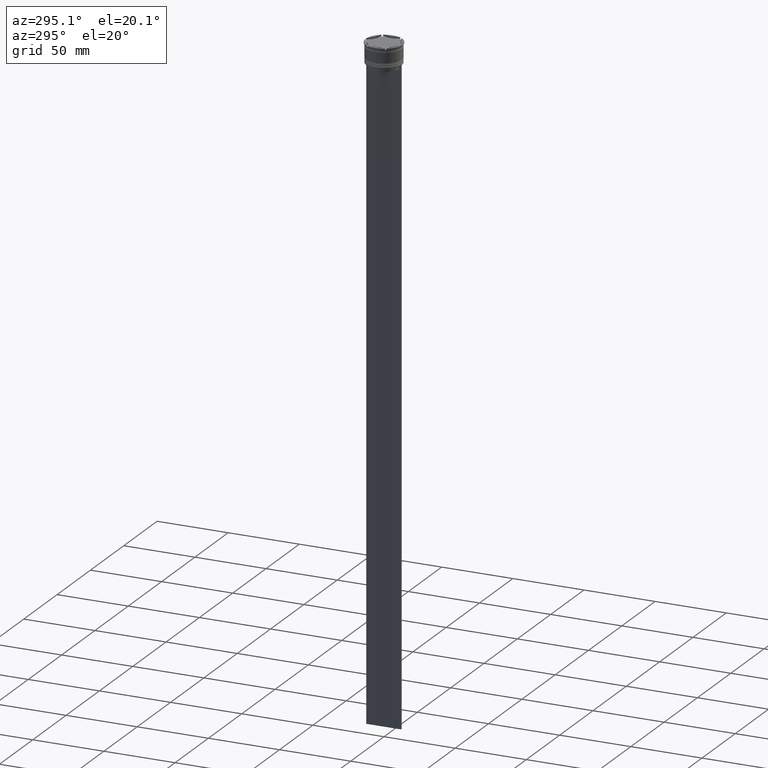
[diagram: clean part render]
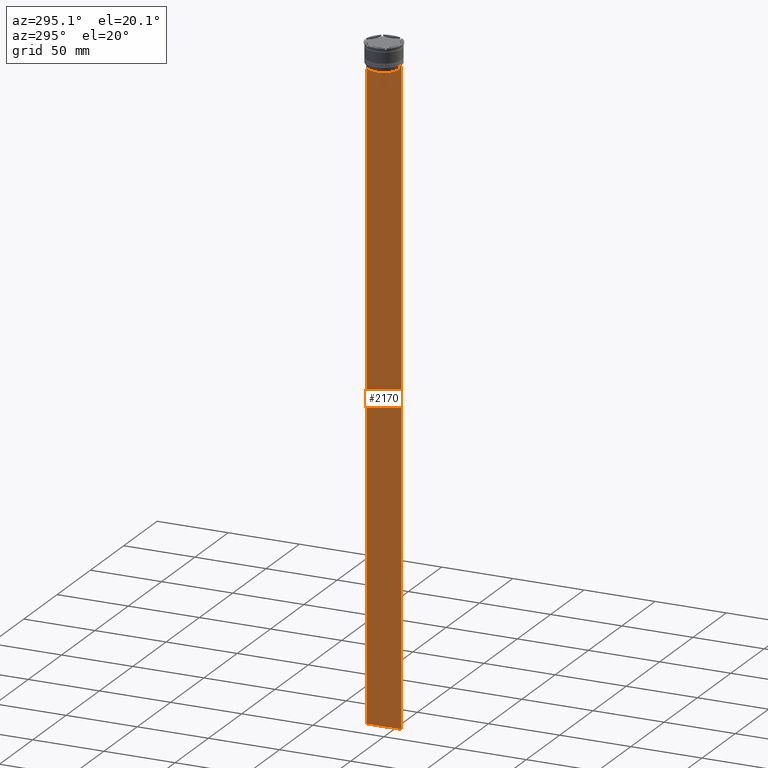
[diagram: same view with one face highlighted and labeled with its STEP entity id]
A machine part, auxiliary view. The second image highlights one B-rep face of the part: STEP entity #2170.
In plain terms, the highlighted planar face has unit normal (-1, 0, 0).
Its self-contained STEP definition (entity closure, byte-faithful):
#7 = ORIENTED_EDGE ( 'NONE', *, *, #1982, .F. ) ;
#13 = VERTEX_POINT ( 'NONE', #2070 ) ;
#16 = VECTOR ( 'NONE', #418, 1000.000000000000000 ) ;
#28 = VERTEX_POINT ( 'NONE', #2266 ) ;
#29 = VECTOR ( 'NONE', #2290, 1000.000000000000000 ) ;
#156 = CARTESIAN_POINT ( 'NONE',  ( -0.4999999999999997780, -12.25000000000000711, -14.00000000000000178 ) ) ;
#197 = LINE ( 'NONE', #156, #2101 ) ;
#203 = DIRECTION ( 'NONE',  ( 0.000000000000000000, 1.000000000000000000, 0.000000000000000000 ) ) ;
#219 = EDGE_CURVE ( 'NONE', #1436, #1754, #197, .T. ) ;
#239 = CARTESIAN_POINT ( 'NONE',  ( -0.4999999999999997780, 10.88852607105296322, 0.000000000000000000 ) ) ;
#279 = DIRECTION ( 'NONE',  ( 0.000000000000000000, 0.000000000000000000, -1.000000000000000000 ) ) ;
#303 = EDGE_CURVE ( 'NONE', #2300, #2667, #1288, .T. ) ;
#313 = CARTESIAN_POINT ( 'NONE',  ( -0.4999999999999997780, -11.22219891450652973, -14.16667035398018903 ) ) ;
#314 = LINE ( 'NONE', #1600, #482 ) ;
#347 = ORIENTED_EDGE ( 'NONE', *, *, #2240, .F. ) ;
#413 = LINE ( 'NONE', #1457, #1747 ) ;
#418 = DIRECTION ( 'NONE',  ( -0.000000000000000000, -0.000000000000000000, 1.000000000000000000 ) ) ;
#427 = DIRECTION ( 'NONE',  ( 0.000000000000000000, 0.000000000000000000, 1.000000000000000000 ) ) ;
#481 = VECTOR ( 'NONE', #279, 1000.000000000000000 ) ;
#482 = VECTOR ( 'NONE', #1813, 1000.000000000000000 ) ;
#501 = CARTESIAN_POINT ( 'NONE',  ( -0.4999999999999997780, 12.24999999999999289, -464.0000000000000000 ) ) ;
#555 = ORIENTED_EDGE ( 'NONE', *, *, #219, .F. ) ;
#590 = CARTESIAN_POINT ( 'NONE',  ( -0.4999999999999997780, -12.25000000000000711, -14.00000000000000178 ) ) ;
#591 = CARTESIAN_POINT ( 'NONE',  ( -0.4999999999999997780, 11.05536450345590538, -14.33333719074559376 ) ) ;
#631 = EDGE_CURVE ( 'NONE', #13, #1746, #2621, .T. ) ;
#663 = VERTEX_POINT ( 'NONE', #501 ) ;
#714 = CARTESIAN_POINT ( 'NONE',  ( -0.4999999999999997780, -10.88852607105296144, -17.00000000000000000 ) ) ;
#755 = CARTESIAN_POINT ( 'NONE',  ( -0.4999999999999997780, -10.88852607105296322, -14.50000000000000000 ) ) ;
#811 = ORIENTED_EDGE ( 'NONE', *, *, #2013, .F. ) ;
#846 = CARTESIAN_POINT ( 'NONE',  ( -0.4999999999999997780, -12.25000000000000711, 10.52039967047845792 ) ) ;
#1003 = VERTEX_POINT ( 'NONE', #2738 ) ;
#1007 = ORIENTED_EDGE ( 'NONE', *, *, #2443, .F. ) ;
#1010 = EDGE_CURVE ( 'NONE', #1436, #663, #413, .T. ) ;
#1043 = FACE_OUTER_BOUND ( 'NONE', #1319, .T. ) ;
#1209 = CARTESIAN_POINT ( 'NONE',  ( -0.4999999999999997780, 12.24999999999999289, -14.00000000000000178 ) ) ;
#1268 = B_SPLINE_CURVE_WITH_KNOTS ( 'NONE', 3,
 ( #755, #1615, #313, #1888 ),
 .UNSPECIFIED., .F., .F.,
 ( 4, 4 ),
 ( 0.05041323384703224469, 0.05112713601261603680 ),
 .UNSPECIFIED. ) ;
#1288 = LINE ( 'NONE', #1305, #16 ) ;
#1305 = CARTESIAN_POINT ( 'NONE',  ( -0.4999999999999997780, -10.88852607105296322, 0.000000000000000000 ) ) ;
#1319 = EDGE_LOOP ( 'NONE', ( #1759, #555, #2739, #347, #7, #811, #2186, #1674, #1007, #2090 ) ) ;
#1345 = EDGE_CURVE ( 'NONE', #2667, #1003, #1268, .T. ) ;
#1357 = CARTESIAN_POINT ( 'NONE',  ( -0.4999999999999997780, -12.25000000000000711, -464.0000000000000000 ) ) ;
#1369 = CARTESIAN_POINT ( 'NONE',  ( -0.4999999999999997780, -12.25000000000000711, 10.52039967047845792 ) ) ;
#1427 = CARTESIAN_POINT ( 'NONE',  ( -0.4999999999999997780, 10.88852607105296322, -14.50000000000000000 ) ) ;
#1436 = VERTEX_POINT ( 'NONE', #1209 ) ;
#1457 = CARTESIAN_POINT ( 'NONE',  ( -0.4999999999999997780, 12.24999999999999289, 10.52039967047845792 ) ) ;
#1465 = CARTESIAN_POINT ( 'NONE',  ( -0.4999999999999997780, -12.25000000000000711, -464.0000000000000000 ) ) ;
#1493 = DIRECTION ( 'NONE',  ( -1.000000000000000000, 0.000000000000000000, 0.000000000000000000 ) ) ;
#1495 = CARTESIAN_POINT ( 'NONE',  ( -0.4999999999999997780, -10.88852607105296322, -14.50000000000000000 ) ) ;
#1530 = CARTESIAN_POINT ( 'NONE',  ( -0.4999999999999997780, 11.38902980942626719, -14.00000000000000178 ) ) ;
#1600 = CARTESIAN_POINT ( 'NONE',  ( -0.4999999999999997780, 10.90000000000000213, -17.00000000000000000 ) ) ;
#1615 = CARTESIAN_POINT ( 'NONE',  ( -0.4999999999999997780, -11.05536450423839057, -14.33333718996393280 ) ) ;
#1636 = LINE ( 'NONE', #590, #29 ) ;
#1674 = ORIENTED_EDGE ( 'NONE', *, *, #303, .F. ) ;
#1719 = LINE ( 'NONE', #1465, #2250 ) ;
#1746 = VERTEX_POINT ( 'NONE', #2358 ) ;
#1747 = VECTOR ( 'NONE', #2346, 1000.000000000000000 ) ;
#1754 = VERTEX_POINT ( 'NONE', #1530 ) ;
#1759 = ORIENTED_EDGE ( 'NONE', *, *, #2594, .F. ) ;
#1813 = DIRECTION ( 'NONE',  ( 0.000000000000000000, -1.000000000000000000, 0.000000000000000000 ) ) ;
#1880 = CARTESIAN_POINT ( 'NONE',  ( -0.4999999999999997780, 11.22219891375843304, -14.16667035472756808 ) ) ;
#1888 = CARTESIAN_POINT ( 'NONE',  ( -0.4999999999999997780, -11.38902980942626719, -14.00000000000000178 ) ) ;
#1907 = VERTEX_POINT ( 'NONE', #1357 ) ;
#1982 = EDGE_CURVE ( 'NONE', #28, #1907, #2249, .T. ) ;
#2013 = EDGE_CURVE ( 'NONE', #1003, #28, #1636, .T. ) ;
#2070 = CARTESIAN_POINT ( 'NONE',  ( -0.4999999999999997780, 10.88852607105296322, -14.50000000000000000 ) ) ;
#2090 = ORIENTED_EDGE ( 'NONE', *, *, #631, .F. ) ;
#2101 = VECTOR ( 'NONE', #2500, 1000.000000000000000 ) ;
#2170 = ADVANCED_FACE ( 'NONE', ( #1043 ), #2575, .T. ) ;
#2186 = ORIENTED_EDGE ( 'NONE', *, *, #1345, .F. ) ;
#2190 = DIRECTION ( 'NONE',  ( 0.000000000000000000, 0.000000000000000000, -1.000000000000000000 ) ) ;
#2239 = B_SPLINE_CURVE_WITH_KNOTS ( 'NONE', 3,
 ( #2496, #1880, #591, #1427 ),
 .UNSPECIFIED., .F., .F.,
 ( 4, 4 ),
 ( 0.01935560801904634073, 0.02006307108468586772 ),
 .UNSPECIFIED. ) ;
#2240 = EDGE_CURVE ( 'NONE', #1907, #663, #1719, .T. ) ;
#2249 = LINE ( 'NONE', #1369, #481 ) ;
#2250 = VECTOR ( 'NONE', #203, 1000.000000000000000 ) ;
#2266 = CARTESIAN_POINT ( 'NONE',  ( -0.4999999999999997780, -12.25000000000000711, -14.00000000000000178 ) ) ;
#2290 = DIRECTION ( 'NONE',  ( 0.000000000000000000, -1.000000000000000000, 0.000000000000000000 ) ) ;
#2300 = VERTEX_POINT ( 'NONE', #714 ) ;
#2346 = DIRECTION ( 'NONE',  ( 0.000000000000000000, 0.000000000000000000, -1.000000000000000000 ) ) ;
#2358 = CARTESIAN_POINT ( 'NONE',  ( -0.4999999999999997780, 10.88852607105296144, -17.00000000000000000 ) ) ;
#2443 = EDGE_CURVE ( 'NONE', #1746, #2300, #314, .T. ) ;
#2468 = AXIS2_PLACEMENT_3D ( 'NONE', #846, #1493, #427 ) ;
#2496 = CARTESIAN_POINT ( 'NONE',  ( -0.4999999999999997780, 11.38902980942626719, -14.00000000000000178 ) ) ;
#2500 = DIRECTION ( 'NONE',  ( 0.000000000000000000, -1.000000000000000000, 0.000000000000000000 ) ) ;
#2507 = VECTOR ( 'NONE', #2190, 1000.000000000000000 ) ;
#2575 = PLANE ( 'NONE',  #2468 ) ;
#2594 = EDGE_CURVE ( 'NONE', #1754, #13, #2239, .T. ) ;
#2621 = LINE ( 'NONE', #239, #2507 ) ;
#2667 = VERTEX_POINT ( 'NONE', #1495 ) ;
#2738 = CARTESIAN_POINT ( 'NONE',  ( -0.4999999999999997780, -11.38902980942626719, -14.00000000000000178 ) ) ;
#2739 = ORIENTED_EDGE ( 'NONE', *, *, #1010, .T. ) ;